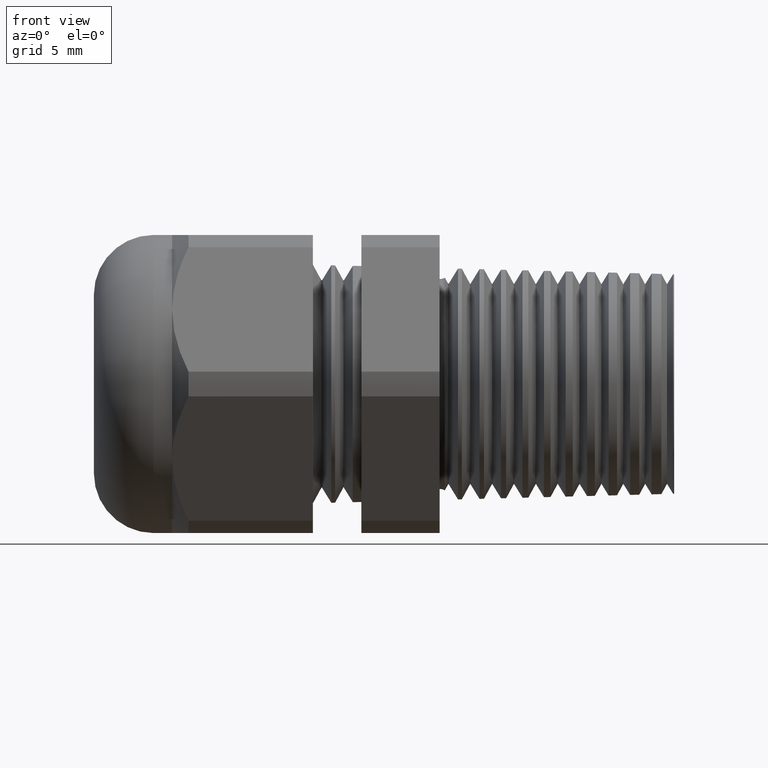
[diagram: clean part render]
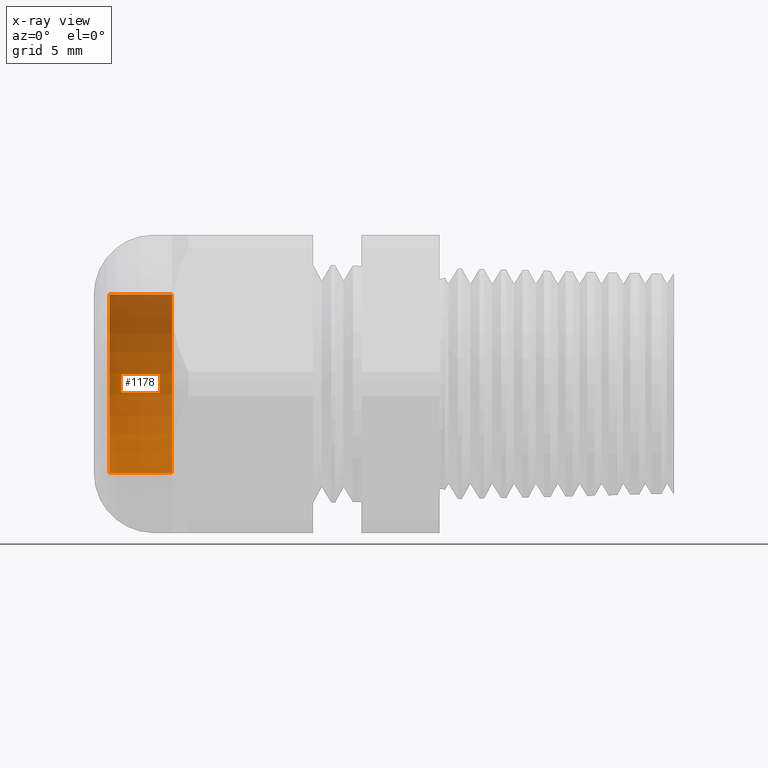
[diagram: x-ray — body ghosted, one internal face saturated and labeled with its STEP entity id]
A machine part, front view, then the same camera in x-ray: the body is ghosted and one INTERNAL B-rep face — a face not visible from any outside direction — is saturated and labeled: STEP entity #1178.
In plain terms, the highlighted cylindrical surface (partial cylindrical patch) has radius 5.715 mm, axis along (1, 0, 0).
Its self-contained STEP definition (entity closure, byte-faithful):
#1175 = VERTEX_POINT ( 'NONE', #3357 ) ;
#1178 = ADVANCED_FACE ( 'NONE', ( #3347 ), #3346, .T. ) ;
#1179 = EDGE_LOOP ( 'NONE', ( #1180, #1181, #1184, #1205 ) ) ;
#1180 = ORIENTED_EDGE ( 'NONE', *, *, #1251, .T. ) ;
#1181 = ORIENTED_EDGE ( 'NONE', *, *, #1182, .T. ) ;
#1182 = EDGE_CURVE ( 'NONE', #1249, #1183, #3341, .T. ) ;
#1183 = VERTEX_POINT ( 'NONE', #3403 ) ;
#1184 = ORIENTED_EDGE ( 'NONE', *, *, #1203, .F. ) ;
#1203 = EDGE_CURVE ( 'NONE', #1204, #1183, #3432, .T. ) ;
#1204 = VERTEX_POINT ( 'NONE', #3428 ) ;
#1205 = ORIENTED_EDGE ( 'NONE', *, *, #1206, .F. ) ;
#1206 = EDGE_CURVE ( 'NONE', #1175, #1204, #3427, .T. ) ;
#1249 = VERTEX_POINT ( 'NONE', #3511 ) ;
#1251 = EDGE_CURVE ( 'NONE', #1175, #1249, #3510, .T. ) ;
#3341 = LINE ( 'NONE', #3406, #3405 ) ;
#3342 = DIRECTION ( 'NONE',  ( 0.0000000000000000000, 0.0000000000000000000, -1.000000000000000000 ) ) ;
#3343 = DIRECTION ( 'NONE',  ( 1.000000000000000000, 0.0000000000000000000, 0.0000000000000000000 ) ) ;
#3344 = CARTESIAN_POINT ( 'NONE',  ( 0.0000000000000000000, 0.0000000000000000000, 0.0000000000000000000 ) ) ;
#3345 = AXIS2_PLACEMENT_3D ( 'NONE', #3344, #3343, #3342 ) ;
#3346 = CYLINDRICAL_SURFACE ( 'NONE', #3345, 0.2249999999999999200 ) ;
#3347 = FACE_OUTER_BOUND ( 'NONE', #1179, .T. ) ;
#3357 = CARTESIAN_POINT ( 'NONE',  ( -1.141000000000000000, 0.0000000000000000000, -0.2249999999999999200 ) ) ;
#3403 = CARTESIAN_POINT ( 'NONE',  ( -0.9831496062992124400, 2.755455298081544500E-017, 0.2249999999999999500 ) ) ;
#3404 = DIRECTION ( 'NONE',  ( 1.000000000000000000, 0.0000000000000000000, 0.0000000000000000000 ) ) ;
#3405 = VECTOR ( 'NONE', #3404, 39.37007874015748100 ) ;
#3406 = CARTESIAN_POINT ( 'NONE',  ( 0.0000000000000000000, 2.755455298081543900E-017, 0.2249999999999999200 ) ) ;
#3424 = DIRECTION ( 'NONE',  ( 1.000000000000000000, 0.0000000000000000000, 0.0000000000000000000 ) ) ;
#3425 = VECTOR ( 'NONE', #3424, 39.37007874015748100 ) ;
#3426 = CARTESIAN_POINT ( 'NONE',  ( 0.0000000000000000000, 0.0000000000000000000, -0.2249999999999999200 ) ) ;
#3427 = LINE ( 'NONE', #3426, #3425 ) ;
#3428 = CARTESIAN_POINT ( 'NONE',  ( -0.9831496062992124400, 0.0000000000000000000, -0.2249999999999999500 ) ) ;
#3429 = DIRECTION ( 'NONE',  ( 0.0000000000000000000, 0.0000000000000000000, -1.000000000000000000 ) ) ;
#3430 = DIRECTION ( 'NONE',  ( 1.000000000000000000, 0.0000000000000000000, 0.0000000000000000000 ) ) ;
#3431 = AXIS2_PLACEMENT_3D ( 'NONE', #3436, #3430, #3429 ) ;
#3432 = CIRCLE ( 'NONE', #3431, 0.2249999999999999500 ) ;
#3436 = CARTESIAN_POINT ( 'NONE',  ( -0.9831496062992124400, 0.0000000000000000000, 0.0000000000000000000 ) ) ;
#3506 = DIRECTION ( 'NONE',  ( 0.0000000000000000000, 0.0000000000000000000, -1.000000000000000000 ) ) ;
#3507 = DIRECTION ( 'NONE',  ( 1.000000000000000000, 0.0000000000000000000, 0.0000000000000000000 ) ) ;
#3508 = CARTESIAN_POINT ( 'NONE',  ( -1.141000000000000000, 0.0000000000000000000, 0.0000000000000000000 ) ) ;
#3509 = AXIS2_PLACEMENT_3D ( 'NONE', #3508, #3507, #3506 ) ;
#3510 = CIRCLE ( 'NONE', #3509, 0.2249999999999999200 ) ;
#3511 = CARTESIAN_POINT ( 'NONE',  ( -1.141000000000000000, 2.755455298081543900E-017, 0.2249999999999999200 ) ) ;